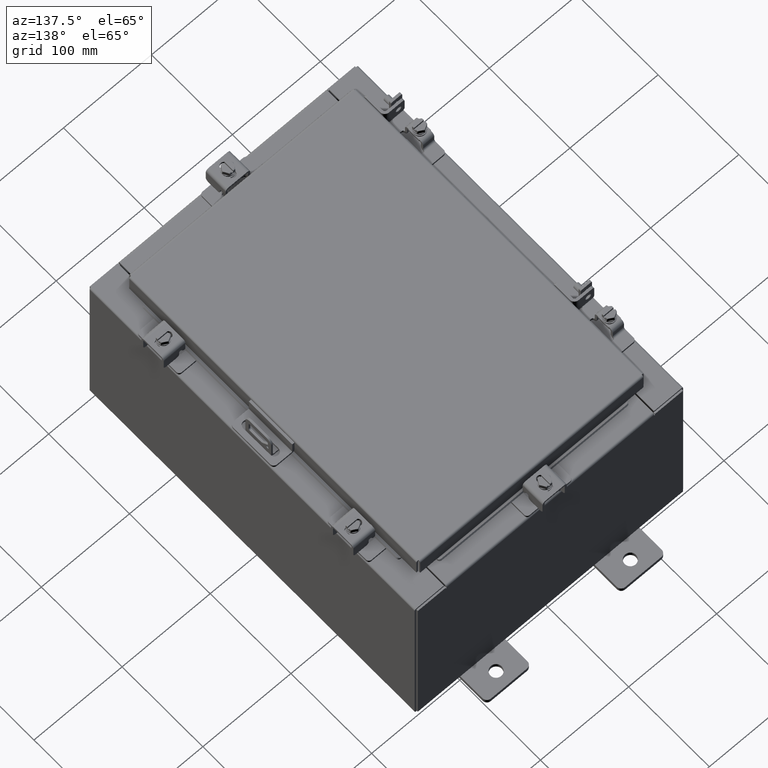
[diagram: clean part render]
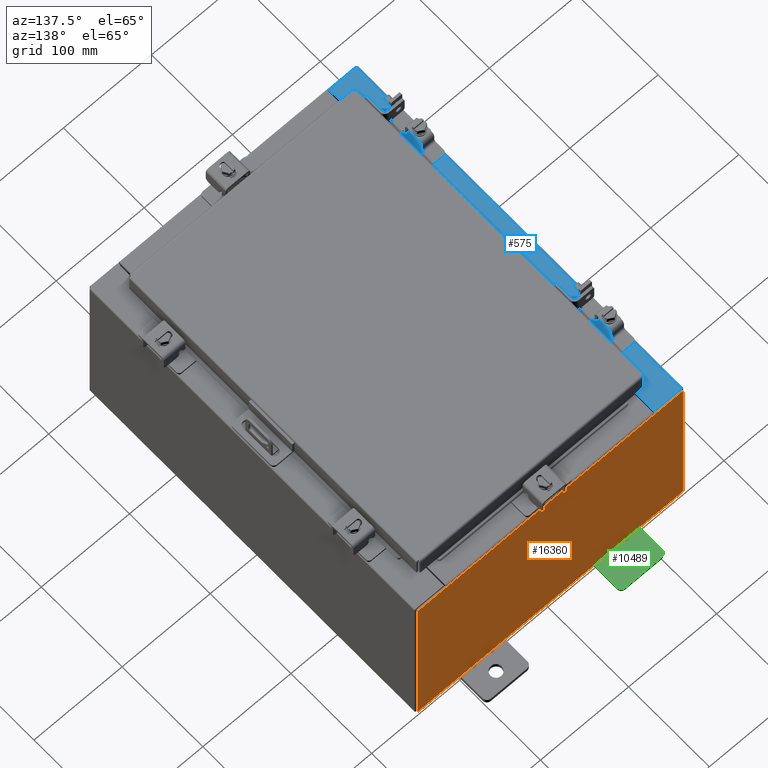
[diagram: same view with three faces highlighted in distinct colors, each labeled with its STEP entity id]
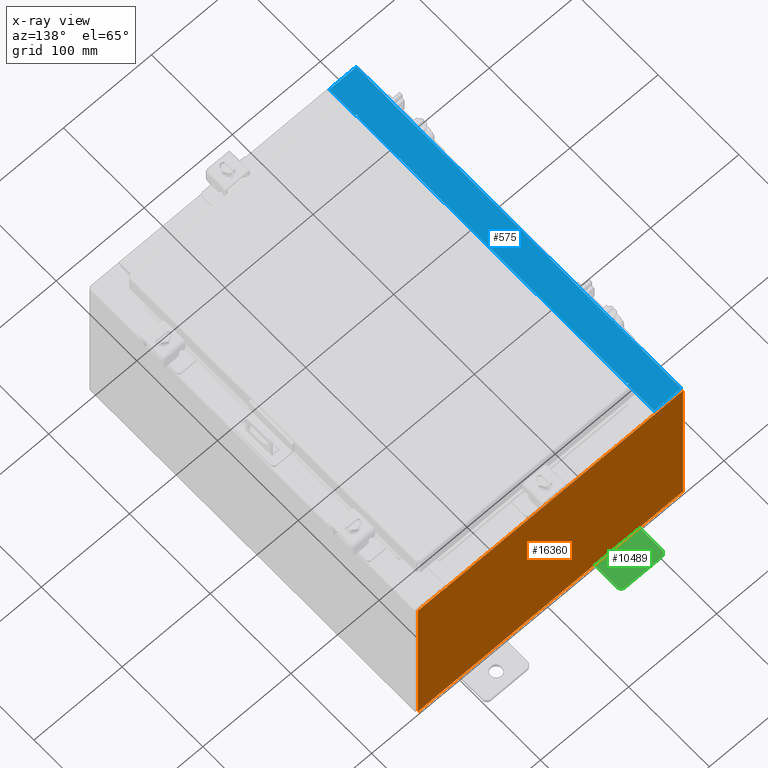
[diagram: x-ray of the same camera — body ghosted, the three highlighted faces saturated]
A machine part, auxiliary view with three faces highlighted in distinct colors.
The next image is the same camera in x-ray (body ghosted, the three faces saturated) — at least one of them is partly hidden behind the body in this view.
Their STEP definitions:

[orange] entity #16360 — the highlighted planar face has unit normal (0, -1, 0).
#309 = CARTESIAN_POINT ( 'NONE',  ( -4.637199999999998200, -1.707404996040164500E-016, 3.912299999999999200 ) ) ;
#394 = CIRCLE ( 'NONE', #1140, 0.01867500000000003900 ) ;
#421 = DIRECTION ( 'NONE',  ( 0.0000000000000000000, -0.0000000000000000000, -1.000000000000000000 ) ) ;
#607 = ORIENTED_EDGE ( 'NONE', *, *, #10719, .F. ) ;
#656 = DIRECTION ( 'NONE',  ( 0.0000000000000000000, 0.0000000000000000000, -1.000000000000000000 ) ) ;
#720 = DIRECTION ( 'NONE',  ( 1.000000000000000000, 0.0000000000000000000, 0.0000000000000000000 ) ) ;
#1044 = EDGE_CURVE ( 'NONE', #9852, #12549, #12539, .T. ) ;
#1100 = CARTESIAN_POINT ( 'NONE',  ( -5.925299999999998200, 0.0000000000000000000, -3.925300000000000500 ) ) ;
#1140 = AXIS2_PLACEMENT_3D ( 'NONE', #15319, #5654, #16985 ) ;
#1162 = CARTESIAN_POINT ( 'NONE',  ( -4.674549999999998200, 0.0000000000000000000, 3.925299999999999100 ) ) ;
#1671 = LINE ( 'NONE', #7802, #17802 ) ;
#1762 = VERTEX_POINT ( 'NONE', #11855 ) ;
#1810 = ORIENTED_EDGE ( 'NONE', *, *, #12330, .F. ) ;
#1888 = DIRECTION ( 'NONE',  ( 1.000000000000000000, 0.0000000000000000000, 0.0000000000000000000 ) ) ;
#1891 = CARTESIAN_POINT ( 'NONE',  ( -5.925299999999998200, 0.0000000000000000000, 3.925299999999999100 ) ) ;
#2723 = CARTESIAN_POINT ( 'NONE',  ( -5.925299999999998200, 0.0000000000000000000, -3.925300000000000500 ) ) ;
#3176 = CARTESIAN_POINT ( 'NONE',  ( -4.637199999999998200, -1.707404996040164500E-016, 3.912299999999999200 ) ) ;
#3341 = ORIENTED_EDGE ( 'NONE', *, *, #11050, .F. ) ;
#3773 = LINE ( 'NONE', #13907, #19414 ) ;
#3871 = DIRECTION ( 'NONE',  ( 0.0000000000000000000, 0.0000000000000000000, 1.000000000000000000 ) ) ;
#3962 = EDGE_CURVE ( 'NONE', #15669, #12581, #19834, .T. ) ;
#4057 = ORIENTED_EDGE ( 'NONE', *, *, #11839, .F. ) ;
#4770 = FACE_OUTER_BOUND ( 'NONE', #12169, .T. ) ;
#5153 = PLANE ( 'NONE',  #19144 ) ;
#5518 = CARTESIAN_POINT ( 'NONE',  ( 5.925300000000002700, 0.0000000000000000000, -3.925300000000000500 ) ) ;
#5654 = DIRECTION ( 'NONE',  ( -0.0000000000000000000, 1.000000000000000000, -0.0000000000000000000 ) ) ;
#5893 = ORIENTED_EDGE ( 'NONE', *, *, #20158, .T. ) ;
#5937 = ORIENTED_EDGE ( 'NONE', *, *, #11253, .T. ) ;
#6072 = DIRECTION ( 'NONE',  ( -0.0000000000000000000, -0.0000000000000000000, 1.000000000000000000 ) ) ;
#6170 = VECTOR ( 'NONE', #1888, 39.37007874015748100 ) ;
#6175 = DIRECTION ( 'NONE',  ( 0.0000000000000000000, 0.0000000000000000000, -1.000000000000000000 ) ) ;
#6276 = CARTESIAN_POINT ( 'NONE',  ( 4.637200000000002700, 0.0000000000000000000, 3.874949999999999200 ) ) ;
#6575 = CARTESIAN_POINT ( 'NONE',  ( 5.925300000000002700, 0.0000000000000000000, 3.925299999999999100 ) ) ;
#6894 = CARTESIAN_POINT ( 'NONE',  ( 4.674550000000001800, 0.0000000000000000000, 3.925299999999999100 ) ) ;
#7332 = ORIENTED_EDGE ( 'NONE', *, *, #16728, .T. ) ;
#7406 = ORIENTED_EDGE ( 'NONE', *, *, #10896, .F. ) ;
#7513 = ORIENTED_EDGE ( 'NONE', *, *, #1044, .T. ) ;
#7526 = DIRECTION ( 'NONE',  ( 0.0000000000000000000, 0.0000000000000000000, 1.000000000000000000 ) ) ;
#7669 = LINE ( 'NONE', #19975, #10412 ) ;
#7709 = CIRCLE ( 'NONE', #11355, 0.01867500000000003900 ) ;
#7732 = DIRECTION ( 'NONE',  ( 0.0000000000000000000, 0.0000000000000000000, -1.000000000000000000 ) ) ;
#7802 = CARTESIAN_POINT ( 'NONE',  ( -4.637199999999998200, -0.0000000000000000000, 0.0000000000000000000 ) ) ;
#8260 = VECTOR ( 'NONE', #10915, 39.37007874015748100 ) ;
#8794 = CARTESIAN_POINT ( 'NONE',  ( 4.637200000000002700, 0.0000000000000000000, 3.912299999999999200 ) ) ;
#8884 = VERTEX_POINT ( 'NONE', #3176 ) ;
#8892 = VECTOR ( 'NONE', #3871, 39.37007874015748100 ) ;
#9852 = VERTEX_POINT ( 'NONE', #5518 ) ;
#9996 = DIRECTION ( 'NONE',  ( 0.0000000000000000000, -1.000000000000000000, 0.0000000000000000000 ) ) ;
#10252 = DIRECTION ( 'NONE',  ( -0.0000000000000000000, 1.000000000000000000, -0.0000000000000000000 ) ) ;
#10261 = CARTESIAN_POINT ( 'NONE',  ( -4.674549999999998200, -0.0000000000000000000, 0.0000000000000000000 ) ) ;
#10329 = VECTOR ( 'NONE', #7732, 39.37007874015748100 ) ;
#10412 = VECTOR ( 'NONE', #720, 39.37007874015748100 ) ;
#10719 = EDGE_CURVE ( 'NONE', #1762, #14860, #7709, .T. ) ;
#10896 = EDGE_CURVE ( 'NONE', #14860, #19406, #16052, .T. ) ;
#10915 = DIRECTION ( 'NONE',  ( -1.000000000000000000, -0.0000000000000000000, -0.0000000000000000000 ) ) ;
#11050 = EDGE_CURVE ( 'NONE', #8884, #15135, #1671, .T. ) ;
#11092 = LINE ( 'NONE', #15857, #10329 ) ;
#11253 = EDGE_CURVE ( 'NONE', #8884, #19406, #19041, .T. ) ;
#11355 = AXIS2_PLACEMENT_3D ( 'NONE', #19916, #10252, #656 ) ;
#11727 = VECTOR ( 'NONE', #7526, 39.37007874015748100 ) ;
#11839 = EDGE_CURVE ( 'NONE', #15135, #14830, #394, .T. ) ;
#11855 = CARTESIAN_POINT ( 'NONE',  ( 4.674550000000002600, 0.0000000000000000000, 3.874949999999999200 ) ) ;
#12009 = ORIENTED_EDGE ( 'NONE', *, *, #15994, .F. ) ;
#12075 = LINE ( 'NONE', #15738, #19629 ) ;
#12169 = EDGE_LOOP ( 'NONE', ( #1810, #4057, #3341, #5937, #7406, #607, #12009, #5893, #19342, #7513, #7332, #20372 ) ) ;
#12330 = EDGE_CURVE ( 'NONE', #14830, #12581, #17988, .T. ) ;
#12539 = LINE ( 'NONE', #2723, #8260 ) ;
#12549 = VERTEX_POINT ( 'NONE', #1100 ) ;
#12581 = VERTEX_POINT ( 'NONE', #1162 ) ;
#13327 = VERTEX_POINT ( 'NONE', #6894 ) ;
#13907 = CARTESIAN_POINT ( 'NONE',  ( 4.674549999999960900, -0.0000000000000000000, -5.072556122654668400E-014 ) ) ;
#13920 = CARTESIAN_POINT ( 'NONE',  ( 4.637200000000002700, 0.0000000000000000000, 0.0000000000000000000 ) ) ;
#14357 = VERTEX_POINT ( 'NONE', #6575 ) ;
#14830 = VERTEX_POINT ( 'NONE', #15957 ) ;
#14858 = CARTESIAN_POINT ( 'NONE',  ( -5.925299999999998200, 0.0000000000000000000, 3.925299999999999100 ) ) ;
#14860 = VERTEX_POINT ( 'NONE', #6276 ) ;
#15135 = VERTEX_POINT ( 'NONE', #16586 ) ;
#15319 = CARTESIAN_POINT ( 'NONE',  ( -4.655874999999998200, 0.0000000000000000000, 3.874949999999999200 ) ) ;
#15460 = EDGE_CURVE ( 'NONE', #14357, #9852, #11092, .T. ) ;
#15562 = DIRECTION ( 'NONE',  ( -1.085143195100001200E-014, 0.0000000000000000000, -1.000000000000000000 ) ) ;
#15669 = VERTEX_POINT ( 'NONE', #1891 ) ;
#15738 = CARTESIAN_POINT ( 'NONE',  ( -5.925299999999998200, 0.0000000000000000000, 3.925299999999999100 ) ) ;
#15857 = CARTESIAN_POINT ( 'NONE',  ( 5.925300000000002700, 0.0000000000000000000, 3.925299999999999100 ) ) ;
#15957 = CARTESIAN_POINT ( 'NONE',  ( -4.674549999999998200, 0.0000000000000000000, 3.874949999999999200 ) ) ;
#15994 = EDGE_CURVE ( 'NONE', #13327, #1762, #3773, .T. ) ;
#16052 = LINE ( 'NONE', #13920, #11727 ) ;
#16360 = ADVANCED_FACE ( 'NONE', ( #4770 ), #5153, .F. ) ;
#16517 = DIRECTION ( 'NONE',  ( 1.000000000000000000, 0.0000000000000000000, 0.0000000000000000000 ) ) ;
#16586 = CARTESIAN_POINT ( 'NONE',  ( -4.637199999999998200, -0.0000000000000000000, 3.874949999999999200 ) ) ;
#16728 = EDGE_CURVE ( 'NONE', #12549, #15669, #12075, .T. ) ;
#16985 = DIRECTION ( 'NONE',  ( 0.0000000000000000000, 0.0000000000000000000, -1.000000000000000000 ) ) ;
#17802 = VECTOR ( 'NONE', #6175, 39.37007874015748100 ) ;
#17988 = LINE ( 'NONE', #10261, #8892 ) ;
#19041 = LINE ( 'NONE', #309, #6170 ) ;
#19144 = AXIS2_PLACEMENT_3D ( 'NONE', #19678, #9996, #421 ) ;
#19342 = ORIENTED_EDGE ( 'NONE', *, *, #15460, .T. ) ;
#19350 = VECTOR ( 'NONE', #16517, 39.37007874015748100 ) ;
#19406 = VERTEX_POINT ( 'NONE', #8794 ) ;
#19414 = VECTOR ( 'NONE', #15562, 39.37007874015748100 ) ;
#19629 = VECTOR ( 'NONE', #6072, 39.37007874015748100 ) ;
#19678 = CARTESIAN_POINT ( 'NONE',  ( 0.0000000000000000000, 0.0000000000000000000, 0.0000000000000000000 ) ) ;
#19834 = LINE ( 'NONE', #14858, #19350 ) ;
#19916 = CARTESIAN_POINT ( 'NONE',  ( 4.655875000000002700, 0.0000000000000000000, 3.874949999999999200 ) ) ;
#19975 = CARTESIAN_POINT ( 'NONE',  ( -5.925299999999998200, 0.0000000000000000000, 3.925299999999999100 ) ) ;
#20158 = EDGE_CURVE ( 'NONE', #13327, #14357, #7669, .T. ) ;
#20372 = ORIENTED_EDGE ( 'NONE', *, *, #3962, .T. ) ;

[blue] entity #575 — the highlighted planar face has unit normal (0, 0, -1).
#348 = ORIENTED_EDGE ( 'NONE', *, *, #4687, .T. ) ;
#435 = DIRECTION ( 'NONE',  ( -7.132762385546378400E-015, -0.0000000000000000000, 1.000000000000000000 ) ) ;
#575 = ADVANCED_FACE ( 'NONE', ( #10760 ), #5617, .F. ) ;
#663 = CARTESIAN_POINT ( 'NONE',  ( -4.750050000000030100, -6.593749999999999100, 7.925300000000008900 ) ) ;
#753 = VERTEX_POINT ( 'NONE', #3766 ) ;
#991 = EDGE_LOOP ( 'NONE', ( #3470, #348, #8272, #12603, #3279, #19428, #1598, #11222, #9396, #11159, #13478, #9832 ) ) ;
#1225 = EDGE_CURVE ( 'NONE', #1722, #3119, #13783, .T. ) ;
#1226 = CARTESIAN_POINT ( 'NONE',  ( -5.679009539018259300E-014, 0.0000000000000000000, 7.925300000000042600 ) ) ;
#1251 = EDGE_CURVE ( 'NONE', #3119, #2177, #14305, .T. ) ;
#1495 = EDGE_CURVE ( 'NONE', #2177, #15018, #6969, .T. ) ;
#1535 = CARTESIAN_POINT ( 'NONE',  ( -4.750050000000030100, -6.631099999999999100, 7.925300000000008900 ) ) ;
#1598 = ORIENTED_EDGE ( 'NONE', *, *, #2395, .F. ) ;
#1680 = AXIS2_PLACEMENT_3D ( 'NONE', #10018, #435, #11659 ) ;
#1722 = VERTEX_POINT ( 'NONE', #2449 ) ;
#1994 = EDGE_CURVE ( 'NONE', #15018, #15185, #14864, .T. ) ;
#2014 = CARTESIAN_POINT ( 'NONE',  ( -5.679009539018259300E-014, -7.925300000000000000, 7.925300000000042600 ) ) ;
#2177 = VERTEX_POINT ( 'NONE', #3689 ) ;
#2395 = EDGE_CURVE ( 'NONE', #3793, #13275, #16932, .T. ) ;
#2449 = CARTESIAN_POINT ( 'NONE',  ( -4.750050000000030100, 6.631099999999998200, 7.925300000000008900 ) ) ;
#2666 = EDGE_CURVE ( 'NONE', #15185, #3793, #4260, .T. ) ;
#2852 = AXIS2_PLACEMENT_3D ( 'NONE', #1226, #18084, #10686 ) ;
#3094 = EDGE_CURVE ( 'NONE', #5146, #13275, #3999, .T. ) ;
#3119 = VERTEX_POINT ( 'NONE', #9109 ) ;
#3279 = ORIENTED_EDGE ( 'NONE', *, *, #3335, .T. ) ;
#3282 = CARTESIAN_POINT ( 'NONE',  ( -4.699700000000029300, -7.925300000000000000, 7.925300000000008900 ) ) ;
#3335 = EDGE_CURVE ( 'NONE', #16425, #5146, #4240, .T. ) ;
#3470 = ORIENTED_EDGE ( 'NONE', *, *, #5210, .F. ) ;
#3493 = VECTOR ( 'NONE', #10740, 39.37007874015748100 ) ;
#3689 = CARTESIAN_POINT ( 'NONE',  ( -4.712700000000030100, 6.593749999999999100, 7.925300000000008900 ) ) ;
#3766 = CARTESIAN_POINT ( 'NONE',  ( -4.699700000000029300, 7.925299999999998200, 7.925300000000008900 ) ) ;
#3793 = VERTEX_POINT ( 'NONE', #1535 ) ;
#3999 = LINE ( 'NONE', #5874, #3493 ) ;
#4018 = CARTESIAN_POINT ( 'NONE',  ( -5.912300000000028500, 7.925299999999998200, 7.925300000000000000 ) ) ;
#4159 = EDGE_CURVE ( 'NONE', #16425, #20568, #17849, .T. ) ;
#4240 = LINE ( 'NONE', #2014, #4742 ) ;
#4260 = CIRCLE ( 'NONE', #1680, 0.01867500000000003900 ) ;
#4438 = EDGE_CURVE ( 'NONE', #753, #20568, #7994, .T. ) ;
#4687 = EDGE_CURVE ( 'NONE', #19961, #753, #4938, .T. ) ;
#4742 = VECTOR ( 'NONE', #13238, 39.37007874015748100 ) ;
#4778 = CARTESIAN_POINT ( 'NONE',  ( -5.679009539018259300E-014, 7.925299999999998200, 7.925300000000042600 ) ) ;
#4938 = LINE ( 'NONE', #6805, #17827 ) ;
#5146 = VERTEX_POINT ( 'NONE', #3282 ) ;
#5210 = EDGE_CURVE ( 'NONE', #19961, #1722, #13995, .T. ) ;
#5219 = VECTOR ( 'NONE', #15615, 39.37007874015748100 ) ;
#5617 = PLANE ( 'NONE',  #2852 ) ;
#5874 = CARTESIAN_POINT ( 'NONE',  ( -4.699700000000029300, 0.0000000000000000000, 7.925300000000008900 ) ) ;
#6367 = CARTESIAN_POINT ( 'NONE',  ( -5.912300000000028500, 7.925299999999998200, 7.925300000000000000 ) ) ;
#6805 = CARTESIAN_POINT ( 'NONE',  ( -4.699700000000029300, 0.0000000000000000000, 7.925300000000008900 ) ) ;
#6969 = LINE ( 'NONE', #8887, #14527 ) ;
#7216 = CARTESIAN_POINT ( 'NONE',  ( -4.712700000000030100, -6.593749999999999100, 7.925300000000008900 ) ) ;
#7572 = AXIS2_PLACEMENT_3D ( 'NONE', #14320, #15020, #15166 ) ;
#7876 = DIRECTION ( 'NONE',  ( 1.000000000000000000, 0.0000000000000000000, 0.0000000000000000000 ) ) ;
#7994 = LINE ( 'NONE', #4778, #16082 ) ;
#8030 = DIRECTION ( 'NONE',  ( -1.000000000000000000, 0.0000000000000000000, -7.132762385546378400E-015 ) ) ;
#8272 = ORIENTED_EDGE ( 'NONE', *, *, #4438, .T. ) ;
#8283 = DIRECTION ( 'NONE',  ( -1.000000000000000000, 0.0000000000000000000, 0.0000000000000000000 ) ) ;
#8426 = DIRECTION ( 'NONE',  ( 0.0000000000000000000, 1.000000000000000000, 0.0000000000000000000 ) ) ;
#8733 = VECTOR ( 'NONE', #15294, 39.37007874015748100 ) ;
#8887 = CARTESIAN_POINT ( 'NONE',  ( -4.712700000000030100, 6.593749999999999100, 7.925300000000008900 ) ) ;
#9109 = CARTESIAN_POINT ( 'NONE',  ( -4.750050000000030100, 6.593749999999999100, 7.925300000000008900 ) ) ;
#9396 = ORIENTED_EDGE ( 'NONE', *, *, #1994, .F. ) ;
#9832 = ORIENTED_EDGE ( 'NONE', *, *, #1225, .F. ) ;
#10018 = CARTESIAN_POINT ( 'NONE',  ( -4.750050000000030100, -6.612424999999998200, 7.925300000000008900 ) ) ;
#10587 = DIRECTION ( 'NONE',  ( -0.0000000000000000000, -1.000000000000000000, -0.0000000000000000000 ) ) ;
#10686 = DIRECTION ( 'NONE',  ( -1.000000000000000000, 0.0000000000000000000, -7.132762385546378400E-015 ) ) ;
#10740 = DIRECTION ( 'NONE',  ( 0.0000000000000000000, 1.000000000000000000, 0.0000000000000000000 ) ) ;
#10760 = FACE_OUTER_BOUND ( 'NONE', #991, .T. ) ;
#11159 = ORIENTED_EDGE ( 'NONE', *, *, #1495, .F. ) ;
#11222 = ORIENTED_EDGE ( 'NONE', *, *, #2666, .F. ) ;
#11525 = CARTESIAN_POINT ( 'NONE',  ( -4.699700000000029300, 6.631099999999999100, 7.925300000000008900 ) ) ;
#11659 = DIRECTION ( 'NONE',  ( 1.000000000000000000, 0.0000000000000000000, 0.0000000000000000000 ) ) ;
#12603 = ORIENTED_EDGE ( 'NONE', *, *, #4159, .F. ) ;
#13082 = VECTOR ( 'NONE', #7876, 39.37007874015748100 ) ;
#13238 = DIRECTION ( 'NONE',  ( 1.000000000000000000, -0.0000000000000000000, 7.132762385546378400E-015 ) ) ;
#13275 = VERTEX_POINT ( 'NONE', #14721 ) ;
#13478 = ORIENTED_EDGE ( 'NONE', *, *, #1251, .F. ) ;
#13477 = VECTOR ( 'NONE', #8283, 39.37007874015748100 ) ;
#13783 = CIRCLE ( 'NONE', #7572, 0.01867500000000003900 ) ;
#13995 = LINE ( 'NONE', #11525, #13477 ) ;
#14305 = LINE ( 'NONE', #15398, #5219 ) ;
#14320 = CARTESIAN_POINT ( 'NONE',  ( -4.750050000000030100, 6.612424999999998200, 7.925300000000008900 ) ) ;
#14527 = VECTOR ( 'NONE', #10587, 39.37007874015748100 ) ;
#14645 = CARTESIAN_POINT ( 'NONE',  ( -4.712700000000030100, -6.593749999999999100, 7.925300000000008900 ) ) ;
#14721 = CARTESIAN_POINT ( 'NONE',  ( -4.699700000000029300, -6.631099999999999100, 7.925300000000008900 ) ) ;
#14864 = LINE ( 'NONE', #7216, #18671 ) ;
#15018 = VERTEX_POINT ( 'NONE', #14645 ) ;
#15020 = DIRECTION ( 'NONE',  ( -7.132762385546378400E-015, -0.0000000000000000000, 1.000000000000000000 ) ) ;
#15166 = DIRECTION ( 'NONE',  ( 1.000000000000000000, 0.0000000000000000000, 0.0000000000000000000 ) ) ;
#15185 = VERTEX_POINT ( 'NONE', #663 ) ;
#15294 = DIRECTION ( 'NONE',  ( -0.0000000000000000000, 1.000000000000000000, -0.0000000000000000000 ) ) ;
#15398 = CARTESIAN_POINT ( 'NONE',  ( -4.750050000000030100, 6.593749999999999100, 7.925300000000008900 ) ) ;
#15615 = DIRECTION ( 'NONE',  ( 1.000000000000000000, 0.0000000000000000000, 0.0000000000000000000 ) ) ;
#16080 = DIRECTION ( 'NONE',  ( -1.000000000000000000, 0.0000000000000000000, 0.0000000000000000000 ) ) ;
#16082 = VECTOR ( 'NONE', #8030, 39.37007874015748100 ) ;
#16425 = VERTEX_POINT ( 'NONE', #16614 ) ;
#16614 = CARTESIAN_POINT ( 'NONE',  ( -5.912300000000028500, -7.925300000000000000, 7.925300000000000000 ) ) ;
#16932 = LINE ( 'NONE', #17273, #13082 ) ;
#17273 = CARTESIAN_POINT ( 'NONE',  ( -4.750050000000030100, -6.631099999999999100, 7.925300000000008900 ) ) ;
#17827 = VECTOR ( 'NONE', #8426, 39.37007874015748100 ) ;
#17849 = LINE ( 'NONE', #4018, #8733 ) ;
#18084 = DIRECTION ( 'NONE',  ( 7.132762385546378400E-015, 0.0000000000000000000, -1.000000000000000000 ) ) ;
#18671 = VECTOR ( 'NONE', #16080, 39.37007874015748100 ) ;
#19428 = ORIENTED_EDGE ( 'NONE', *, *, #3094, .T. ) ;
#19636 = CARTESIAN_POINT ( 'NONE',  ( -4.699700000000029300, 6.631099999999999100, 7.925300000000008900 ) ) ;
#19961 = VERTEX_POINT ( 'NONE', #19636 ) ;
#20568 = VERTEX_POINT ( 'NONE', #6367 ) ;

[green] entity #10489 — the highlighted planar face has unit normal (0, 0, 1).
#48 = VERTEX_POINT ( 'NONE', #14574 ) ;
#344 = LINE ( 'NONE', #20548, #4069 ) ;
#484 = EDGE_CURVE ( 'NONE', #18628, #19270, #4206, .T. ) ;
#726 = EDGE_CURVE ( 'NONE', #16560, #1865, #4952, .T. ) ;
#874 = CIRCLE ( 'NONE', #2649, 0.2499999999999999200 ) ;
#881 = EDGE_CURVE ( 'NONE', #6711, #10724, #19366, .T. ) ;
#1163 = EDGE_CURVE ( 'NONE', #3484, #3505, #6725, .T. ) ;
#1292 = CARTESIAN_POINT ( 'NONE',  ( 1.928684683526972300E-016, -1.060000000000002100, 0.2500000000000005000 ) ) ;
#1399 = CIRCLE ( 'NONE', #3117, 0.2499999999999999200 ) ;
#1586 = DIRECTION ( 'NONE',  ( -0.0000000000000000000, 0.0000000000000000000, -1.000000000000000000 ) ) ;
#1865 = VERTEX_POINT ( 'NONE', #20499 ) ;
#2023 = LINE ( 'NONE', #16194, #5781 ) ;
#2118 = DIRECTION ( 'NONE',  ( 1.000000000000000000, 0.0000000000000000000, -0.0000000000000000000 ) ) ;
#2197 = CARTESIAN_POINT ( 'NONE',  ( 6.829619984160658000E-017, -1.250000000000003800, 0.2500000000000005000 ) ) ;
#2360 = CARTESIAN_POINT ( 'NONE',  ( 0.0000000000000000000, 1.059999999999996500, 0.9999999999999953400 ) ) ;
#2457 = DIRECTION ( 'NONE',  ( 1.000000000000000000, -0.0000000000000000000, -5.163192708025532000E-017 ) ) ;
#2649 = AXIS2_PLACEMENT_3D ( 'NONE', #3735, #15004, #5349 ) ;
#3026 = ORIENTED_EDGE ( 'NONE', *, *, #7106, .T. ) ;
#3117 = AXIS2_PLACEMENT_3D ( 'NONE', #12102, #2457, #13694 ) ;
#3244 = AXIS2_PLACEMENT_3D ( 'NONE', #6891, #18189, #8512 ) ;
#3334 = DIRECTION ( 'NONE',  ( 0.0000000000000000000, 0.0000000000000000000, -1.000000000000000000 ) ) ;
#3469 = ORIENTED_EDGE ( 'NONE', *, *, #16273, .T. ) ;
#3483 = AXIS2_PLACEMENT_3D ( 'NONE', #4572, #15863, #6188 ) ;
#3484 = VERTEX_POINT ( 'NONE', #18411 ) ;
#3505 = VERTEX_POINT ( 'NONE', #2360 ) ;
#3620 = CARTESIAN_POINT ( 'NONE',  ( 0.0000000000000000000, -1.060000000000004100, -0.8100000000000050500 ) ) ;
#3735 = CARTESIAN_POINT ( 'NONE',  ( 4.780733988912460100E-016, -0.6249999999999993300, 5.858939755051854500E-017 ) ) ;
#4069 = VECTOR ( 'NONE', #9276, 39.37007874015748100 ) ;
#4194 = VERTEX_POINT ( 'NONE', #13648 ) ;
#4206 = CIRCLE ( 'NONE', #15285, 0.1900000000000011100 ) ;
#4572 = CARTESIAN_POINT ( 'NONE',  ( 4.039428427013647300E-016, 0.6249999999999992200, -9.783840404509077400E-018 ) ) ;
#4870 = DIRECTION ( 'NONE',  ( 0.0000000000000000000, -1.639108796198553600E-015, -1.000000000000000000 ) ) ;
#4899 = LINE ( 'NONE', #14929, #13458 ) ;
#4952 = CIRCLE ( 'NONE', #19993, 0.1900000000000011100 ) ;
#5004 = EDGE_CURVE ( 'NONE', #48, #4194, #13749, .T. ) ;
#5349 = DIRECTION ( 'NONE',  ( -6.523827964459551700E-016, -1.000000000000000000, 0.0000000000000000000 ) ) ;
#5593 = DIRECTION ( 'NONE',  ( 0.0000000000000000000, 1.639108796198553600E-015, 1.000000000000000000 ) ) ;
#5627 = VECTOR ( 'NONE', #15898, 39.37007874015748100 ) ;
#5781 = VECTOR ( 'NONE', #4870, 39.37007874015748100 ) ;
#6168 = CARTESIAN_POINT ( 'NONE',  ( 0.0000000000000000000, -0.6249999999999992200, 0.2500000000000005000 ) ) ;
#6188 = DIRECTION ( 'NONE',  ( -5.163192708025533800E-017, 0.0000000000000000000, -1.000000000000000000 ) ) ;
#6270 = DIRECTION ( 'NONE',  ( 1.000000000000000000, 0.0000000000000000000, -0.0000000000000000000 ) ) ;
#6374 = CARTESIAN_POINT ( 'NONE',  ( 4.780733988912460100E-016, -0.6249999999999993300, -0.2499999999999998600 ) ) ;
#6485 = EDGE_CURVE ( 'NONE', #11465, #11155, #874, .T. ) ;
#6537 = ORIENTED_EDGE ( 'NONE', *, *, #13028, .T. ) ;
#6711 = VERTEX_POINT ( 'NONE', #20429 ) ;
#6725 = CIRCLE ( 'NONE', #11488, 0.1900000000000011100 ) ;
#6891 = CARTESIAN_POINT ( 'NONE',  ( 0.0000000000000000000, -1.060000000000002100, 0.4400000000000016700 ) ) ;
#7106 = EDGE_CURVE ( 'NONE', #4194, #8773, #7365, .T. ) ;
#7168 = ORIENTED_EDGE ( 'NONE', *, *, #7521, .T. ) ;
#7262 = CARTESIAN_POINT ( 'NONE',  ( 1.928684683526964400E-016, -1.060000000000003400, -0.2499999999999994400 ) ) ;
#7365 = LINE ( 'NONE', #13021, #11167 ) ;
#7419 = AXIS2_PLACEMENT_3D ( 'NONE', #7974, #11214, #1586 ) ;
#7470 = CARTESIAN_POINT ( 'NONE',  ( 0.0000000000000000000, -1.250000000000003100, 0.4400000000000020000 ) ) ;
#7521 = EDGE_CURVE ( 'NONE', #19270, #6711, #344, .T. ) ;
#7974 = CARTESIAN_POINT ( 'NONE',  ( 0.0000000000000000000, 0.0000000000000000000, 0.0000000000000000000 ) ) ;
#8006 = ORIENTED_EDGE ( 'NONE', *, *, #17358, .F. ) ;
#8302 = ORIENTED_EDGE ( 'NONE', *, *, #1163, .T. ) ;
#8512 = DIRECTION ( 'NONE',  ( 0.0000000000000000000, 0.0000000000000000000, -1.000000000000000000 ) ) ;
#8595 = CARTESIAN_POINT ( 'NONE',  ( 0.0000000000000000000, -1.060000000000003400, -0.4400000000000005000 ) ) ;
#8773 = VERTEX_POINT ( 'NONE', #7470 ) ;
#8850 = ORIENTED_EDGE ( 'NONE', *, *, #20205, .F. ) ;
#8916 = DIRECTION ( 'NONE',  ( 0.0000000000000000000, 0.0000000000000000000, -1.000000000000000000 ) ) ;
#9061 = VECTOR ( 'NONE', #13423, 39.37007874015748100 ) ;
#9112 = CARTESIAN_POINT ( 'NONE',  ( 0.0000000000000000000, 1.059999999999993600, -0.8100000000000089400 ) ) ;
#9276 = DIRECTION ( 'NONE',  ( 0.0000000000000000000, 1.000000000000000000, -1.639108796198558100E-015 ) ) ;
#9398 = CARTESIAN_POINT ( 'NONE',  ( 0.0000000000000000000, -1.060000000000001600, 0.8099999999999978300 ) ) ;
#9488 = LINE ( 'NONE', #10369, #16598 ) ;
#9511 = CIRCLE ( 'NONE', #3483, 0.2499999999999999200 ) ;
#9867 = EDGE_CURVE ( 'NONE', #10724, #3484, #9488, .T. ) ;
#10369 = CARTESIAN_POINT ( 'NONE',  ( 0.0000000000000000000, 1.249999999999994200, -1.000000000000010400 ) ) ;
#10489 = ADVANCED_FACE ( 'NONE', ( #11743, #10741 ), #20776, .T. ) ;
#10584 = ORIENTED_EDGE ( 'NONE', *, *, #9867, .T. ) ;
#10724 = VERTEX_POINT ( 'NONE', #11895 ) ;
#10741 = FACE_OUTER_BOUND ( 'NONE', #17266, .T. ) ;
#10781 = ORIENTED_EDGE ( 'NONE', *, *, #484, .T. ) ;
#11002 = VERTEX_POINT ( 'NONE', #1292 ) ;
#11055 = DIRECTION ( 'NONE',  ( 0.0000000000000000000, 0.0000000000000000000, -1.000000000000000000 ) ) ;
#11100 = CARTESIAN_POINT ( 'NONE',  ( 0.0000000000000000000, 1.249999999999997600, 0.9999999999999951200 ) ) ;
#11155 = VERTEX_POINT ( 'NONE', #6374 ) ;
#11167 = VECTOR ( 'NONE', #17915, 39.37007874015748100 ) ;
#11214 = DIRECTION ( 'NONE',  ( 1.000000000000000000, 0.0000000000000000000, -0.0000000000000000000 ) ) ;
#11465 = VERTEX_POINT ( 'NONE', #6168 ) ;
#11488 = AXIS2_PLACEMENT_3D ( 'NONE', #12903, #6270, #20689 ) ;
#11743 = FACE_BOUND ( 'NONE', #11981, .T. ) ;
#11841 = DIRECTION ( 'NONE',  ( -6.556435184794182400E-016, -1.000000000000000000, -1.639108796198545600E-016 ) ) ;
#11895 = CARTESIAN_POINT ( 'NONE',  ( 0.0000000000000000000, 1.249999999999994700, -0.8100000000000092700 ) ) ;
#11981 = EDGE_LOOP ( 'NONE', ( #8006, #8850 ) ) ;
#12102 = CARTESIAN_POINT ( 'NONE',  ( 4.039428427013647300E-016, 0.6249999999999992200, -9.783840404509077400E-018 ) ) ;
#12355 = LINE ( 'NONE', #2197, #9061 ) ;
#12903 = CARTESIAN_POINT ( 'NONE',  ( 0.0000000000000000000, 1.059999999999996300, 0.8099999999999938400 ) ) ;
#12948 = CARTESIAN_POINT ( 'NONE',  ( 3.910348609313009100E-016, 0.6249999999999992200, -0.2499999999999999200 ) ) ;
#13021 = CARTESIAN_POINT ( 'NONE',  ( 0.0000000000000000000, -1.250000000000002200, 0.9999999999999992200 ) ) ;
#13028 = EDGE_CURVE ( 'NONE', #3505, #48, #14193, .T. ) ;
#13259 = DIRECTION ( 'NONE',  ( 1.000000000000000000, 0.0000000000000000000, -0.0000000000000000000 ) ) ;
#13423 = DIRECTION ( 'NONE',  ( 6.556435184794182400E-016, 1.000000000000000000, 0.0000000000000000000 ) ) ;
#13458 = VECTOR ( 'NONE', #11841, 39.37007874015748100 ) ;
#13558 = AXIS2_PLACEMENT_3D ( 'NONE', #9398, #20682, #11055 ) ;
#13648 = CARTESIAN_POINT ( 'NONE',  ( 0.0000000000000000000, -1.250000000000002400, 0.8099999999999980500 ) ) ;
#13694 = DIRECTION ( 'NONE',  ( -5.163192708025533800E-017, 0.0000000000000000000, -1.000000000000000000 ) ) ;
#13749 = CIRCLE ( 'NONE', #13558, 0.1900000000000011100 ) ;
#13929 = ORIENTED_EDGE ( 'NONE', *, *, #15151, .T. ) ;
#13930 = ORIENTED_EDGE ( 'NONE', *, *, #19369, .T. ) ;
#13979 = CIRCLE ( 'NONE', #3244, 0.1900000000000011400 ) ;
#14193 = LINE ( 'NONE', #11100, #5627 ) ;
#14236 = CARTESIAN_POINT ( 'NONE',  ( 0.0000000000000000000, -1.250000000000005300, -0.8100000000000047200 ) ) ;
#14574 = CARTESIAN_POINT ( 'NONE',  ( 0.0000000000000000000, -1.060000000000001200, 0.9999999999999988900 ) ) ;
#14929 = CARTESIAN_POINT ( 'NONE',  ( 4.780733988912460100E-016, -0.6249999999999993300, -0.2499999999999993900 ) ) ;
#14961 = VERTEX_POINT ( 'NONE', #12948 ) ;
#15004 = DIRECTION ( 'NONE',  ( -1.000000000000000000, 6.523827964459549700E-016, 5.163192708025532000E-017 ) ) ;
#15151 = EDGE_CURVE ( 'NONE', #11002, #11465, #12355, .T. ) ;
#15285 = AXIS2_PLACEMENT_3D ( 'NONE', #3620, #2118, #8916 ) ;
#15396 = ORIENTED_EDGE ( 'NONE', *, *, #19331, .T. ) ;
#15556 = DIRECTION ( 'NONE',  ( 1.000000000000000000, 0.0000000000000000000, -0.0000000000000000000 ) ) ;
#15863 = DIRECTION ( 'NONE',  ( 1.000000000000000000, -0.0000000000000000000, -5.163192708025532000E-017 ) ) ;
#15898 = DIRECTION ( 'NONE',  ( 0.0000000000000000000, -1.000000000000000000, 1.639108796198558100E-015 ) ) ;
#16194 = CARTESIAN_POINT ( 'NONE',  ( 0.0000000000000000000, -1.250000000000002200, 0.9999999999999992200 ) ) ;
#16273 = EDGE_CURVE ( 'NONE', #1865, #18628, #2023, .T. ) ;
#16560 = VERTEX_POINT ( 'NONE', #7262 ) ;
#16598 = VECTOR ( 'NONE', #5593, 39.37007874015748100 ) ;
#16807 = AXIS2_PLACEMENT_3D ( 'NONE', #9112, #13259, #3334 ) ;
#17266 = EDGE_LOOP ( 'NONE', ( #6537, #17677, #3026, #15396, #13929, #20024, #13930, #19943, #3469, #10781, #7168, #18335, #10584, #8302 ) ) ;
#17358 = EDGE_CURVE ( 'NONE', #14961, #20108, #9511, .T. ) ;
#17677 = ORIENTED_EDGE ( 'NONE', *, *, #5004, .T. ) ;
#17915 = DIRECTION ( 'NONE',  ( 0.0000000000000000000, -1.639108796198553600E-015, -1.000000000000000000 ) ) ;
#18189 = DIRECTION ( 'NONE',  ( 1.000000000000000000, 0.0000000000000000000, -0.0000000000000000000 ) ) ;
#18228 = CARTESIAN_POINT ( 'NONE',  ( 4.168508244714285900E-016, 0.6249999999999992200, 0.2499999999999999200 ) ) ;
#18335 = ORIENTED_EDGE ( 'NONE', *, *, #881, .T. ) ;
#18411 = CARTESIAN_POINT ( 'NONE',  ( 0.0000000000000000000, 1.249999999999997300, 0.8099999999999935000 ) ) ;
#18628 = VERTEX_POINT ( 'NONE', #14236 ) ;
#19270 = VERTEX_POINT ( 'NONE', #19666 ) ;
#19329 = DIRECTION ( 'NONE',  ( 0.0000000000000000000, 0.0000000000000000000, -1.000000000000000000 ) ) ;
#19331 = EDGE_CURVE ( 'NONE', #8773, #11002, #13979, .T. ) ;
#19366 = CIRCLE ( 'NONE', #16807, 0.1900000000000011100 ) ;
#19369 = EDGE_CURVE ( 'NONE', #11155, #16560, #4899, .T. ) ;
#19666 = CARTESIAN_POINT ( 'NONE',  ( 0.0000000000000000000, -1.060000000000004500, -1.000000000000006400 ) ) ;
#19943 = ORIENTED_EDGE ( 'NONE', *, *, #726, .T. ) ;
#19993 = AXIS2_PLACEMENT_3D ( 'NONE', #8595, #15556, #19329 ) ;
#20024 = ORIENTED_EDGE ( 'NONE', *, *, #6485, .T. ) ;
#20108 = VERTEX_POINT ( 'NONE', #18228 ) ;
#20205 = EDGE_CURVE ( 'NONE', #20108, #14961, #1399, .T. ) ;
#20429 = CARTESIAN_POINT ( 'NONE',  ( 0.0000000000000000000, 1.059999999999993400, -1.000000000000010000 ) ) ;
#20499 = CARTESIAN_POINT ( 'NONE',  ( 0.0000000000000000000, -1.250000000000004700, -0.4400000000000002200 ) ) ;
#20548 = CARTESIAN_POINT ( 'NONE',  ( 0.0000000000000000000, -1.250000000000005600, -1.000000000000006200 ) ) ;
#20682 = DIRECTION ( 'NONE',  ( 1.000000000000000000, 0.0000000000000000000, -0.0000000000000000000 ) ) ;
#20689 = DIRECTION ( 'NONE',  ( 0.0000000000000000000, 0.0000000000000000000, -1.000000000000000000 ) ) ;
#20776 = PLANE ( 'NONE',  #7419 ) ;